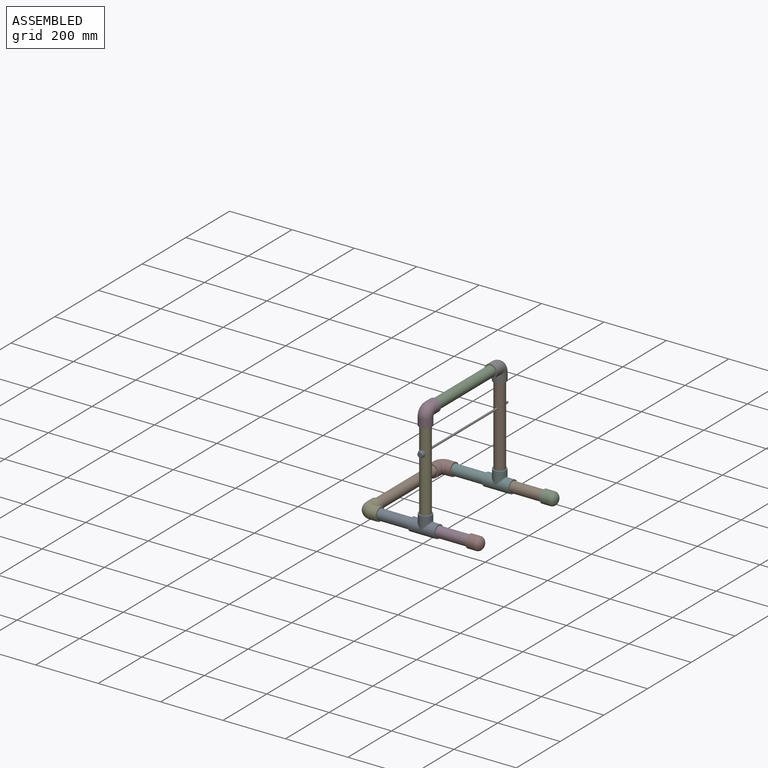
[diagram: assembled view]
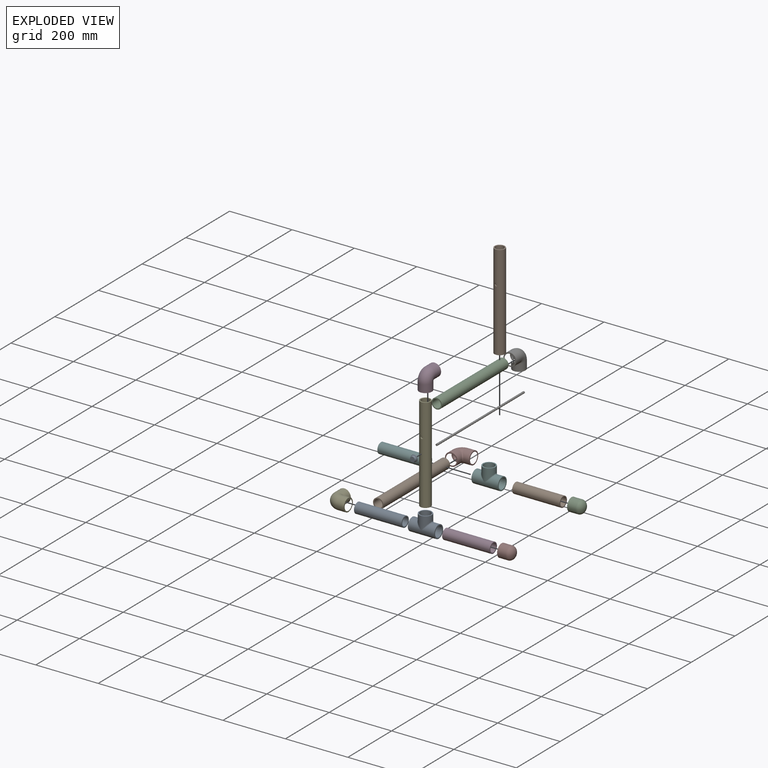
[diagram: exploded view]
GUIDED TOUR — MATED ASSEMBLY WITH SUBASSEMBLIES (Onshape document ecc70650d9e2fe0dbf41c61e, AutoMate assembly ecc70650d9e2fe0dbf41c61e_c4054f734761b2e7a3944f0c_7b533896100cbe7989020245_default)

This assembly has 19 component occurrences arranged in 18 top-level units: 17 individual components plus 1 subassembly (S0). The tour has two levels: first the top level, where each subassembly is treated as one rigid unit; then each subassembly is toured internally in its own section (nesting deeper than one subassembly level is flattened into its subassembly's section).

Components are labeled P0..P18 across the whole record; subassembly units are labeled S0..S0. A mate is a constraint between two units; its type names the relative motion it leaves free:
  FASTENED — locks the two components together rigidly (no relative motion),
  SLIDER — leaves translation along the listed axis free.
Axis/direction vectors are unit vectors and 'through' points are millimeter coordinates, both in the assembly's world frame.

TOP-LEVEL MATES (between units; each subassembly's internal mates are listed in its own section)
  1. FASTENED "Fastened 3": P17 <-> P0, direction (-1.000, 0.000, 0.000) through (169.86, -169.86, 0.00) mm
  2. FASTENED "Fastened 2": P4 <-> P17, direction (1.000, 0.000, 0.000) through (17.46, -169.86, 0.00) mm
  3. FASTENED "Fastened 1": P4 <-> P9, direction (0.000, 1.000, 0.000) through (0.00, -152.40, 0.00) mm
  4. FASTENED "Fastened 14": P18 <-> P13, direction (0.000, 0.000, -1.000) through (187.34, 169.86, 17.48) mm
  5. FASTENED "Fastened 9": P13 <-> P1, direction (1.000, 0.000, 0.000) through (204.81, 169.86, 0.00) mm
  6. FASTENED "Fastened 4": P3 <-> P0, direction (-1.000, 0.000, 0.000) through (204.81, -169.86, 0.00) mm
  7. FASTENED "Fastened 7": P15 <-> P5, direction (1.000, 0.000, 0.000) through (17.46, 169.86, 0.00) mm
  8. SLIDER "Slider 1": P6 <-> P12, axis (0.000, 1.000, 0.000) through (187.34, 5.86, 220.68) mm
  9. FASTENED "Fastened 6": P15 <-> P9, direction (0.000, -1.000, 0.000) through (0.00, 152.40, 0.00) mm
  10. FASTENED "Fastened 5": P3 <-> P7, direction (1.000, 0.000, 0.000) through (357.21, -169.86, 0.00) mm
  11. FASTENED "Fastened 16": P14 <-> P18, direction (0.000, 0.000, 1.000) through (187.34, 169.86, 322.28) mm
  12. FASTENED "Fastened 11": P12 <-> P0, direction (0.000, 0.000, 1.000) through (187.34, -169.86, 17.48) mm
  13. FASTENED "Fastened 15": P2 <-> P11, direction (0.000, 1.000, 0.000) through (187.34, -152.40, 339.74) mm
  14. FASTENED "Fastened 10": P1 <-> P10, direction (1.000, 0.000, 0.000) through (357.21, 169.86, 0.00) mm
  15. FASTENED "Fastened 17": S0 <-> P6, direction (0.000, 1.000, 0.000) through (187.34, -194.17, 220.68) mm
  16. FASTENED "Fastened 8": P13 <-> P5, direction (-1.000, 0.000, 0.000) through (169.86, 169.86, 0.00) mm
  17. FASTENED "Fastened 13": P14 <-> P2, direction (0.000, -1.000, 0.000) through (187.34, 152.40, 339.74) mm
  18. FASTENED "Fastened 12": P11 <-> P12, direction (0.000, 0.000, -1.000) through (187.34, -169.86, 322.28) mm

TOP-LEVEL ASSEMBLY ORDER
  1. P0 — the base component [order heuristic]
  2. P13 — core [order heuristic]
  3. P1 — core [order heuristic]
  4. P17 — core [order heuristic]
  5. P5 — core [order heuristic]
  6. P9 — core [order heuristic]
  7. P3 — core [order heuristic]
  8. P7 — core [order heuristic]
  9. P10 — core [order heuristic]
  10. P4 — core [order heuristic]
  11. P15 — core [order heuristic]
  12. P6 [order verified]
  13. S0 [order verified]
  14. P14 [order verified]
  15. P11 [order verified]
  16. P2 [order verified]
  17. P18 [order verified]
  18. P12 [order verified]
(S0 verified with a relaxed clearance tolerance: the source model stores slight part interference there.)
Order-tag legend:
  [order verified] — this step's position reverses a verified removal order: the component was checked to insert without passing through the ones already placed.
  [order heuristic] — the first 11 components form the assembly's core: parts whose collision-free extraction could not be verified, listed in mate-graph order.

Of the 19 component occurrences, 9 carry the full construction recipe — the FeatureScript program that regenerates the part's solid from scratch; the rest are supplied as boundary geometry only. Each toured unit is shown spotlighted twice — assembled, then exploded with a leader line back to its socket (green = recipe-attached component, orange = geometry-only, blue = subassembly unit; the rest desaturated gray).
NOTE — document 2 of 2 of this assembly tour. The two overview renders and the header above are repeated from document 1; the component sections below continue where the previous document stopped.
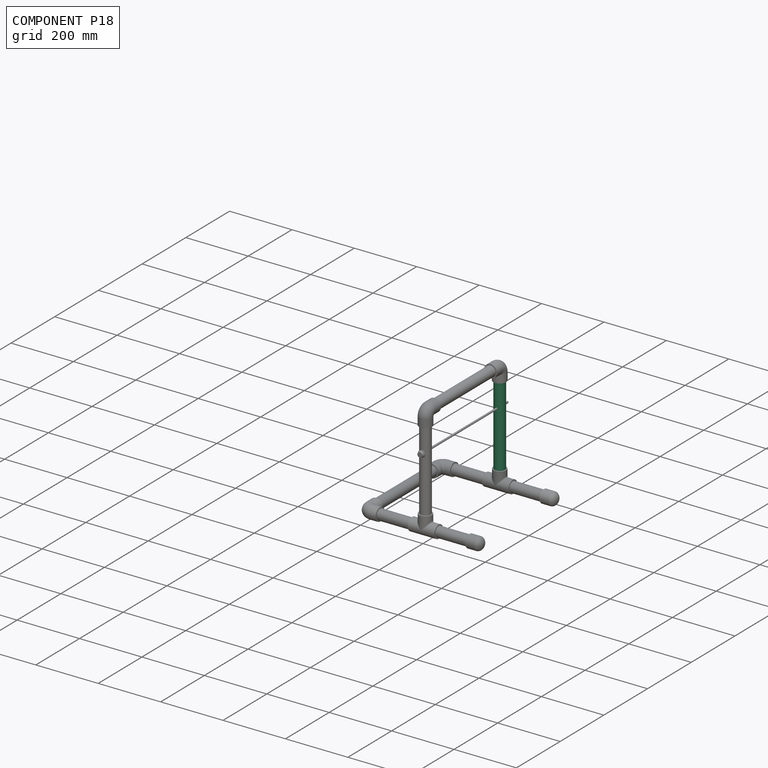
[diagram: component P18 — assembled]
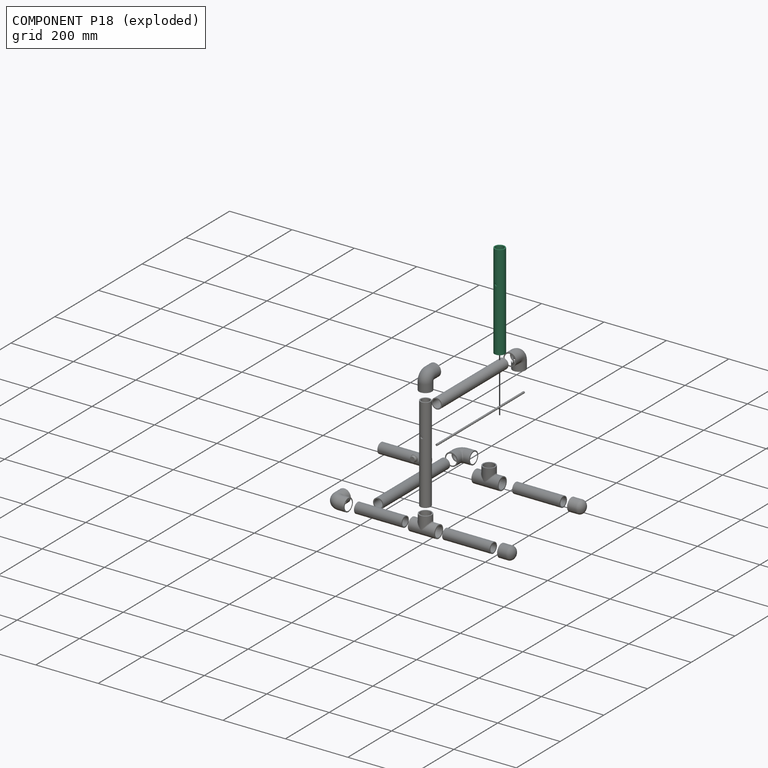
[diagram: component P18 — exploded]
COMPONENT P18 — same part as P12 (CADFS 00862327); its construction recipe is shown at P12.
Held by: FASTENED mate "Fastened 14" to P13; FASTENED mate "Fastened 16" to P14.
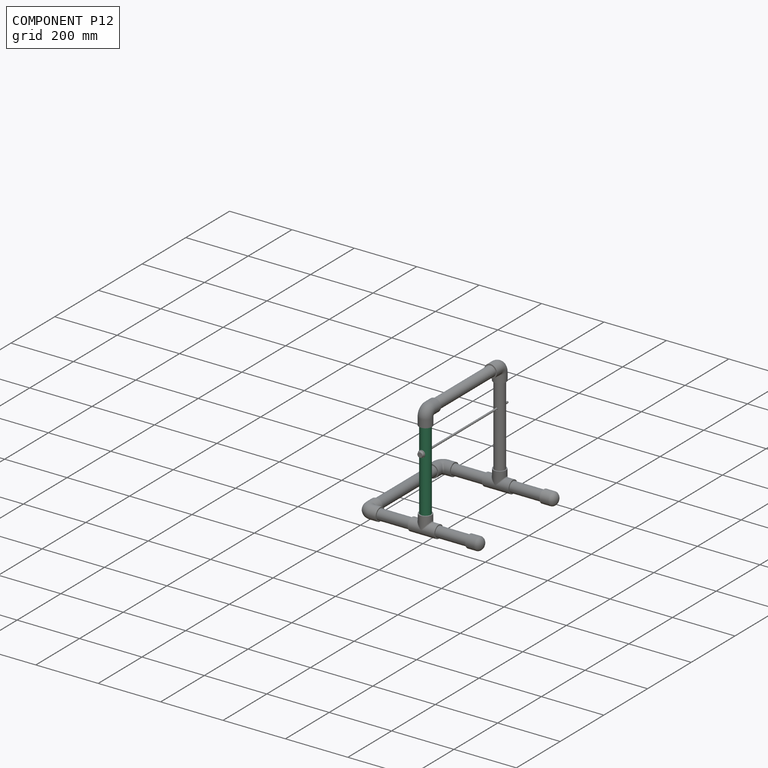
[diagram: component P12 — assembled]
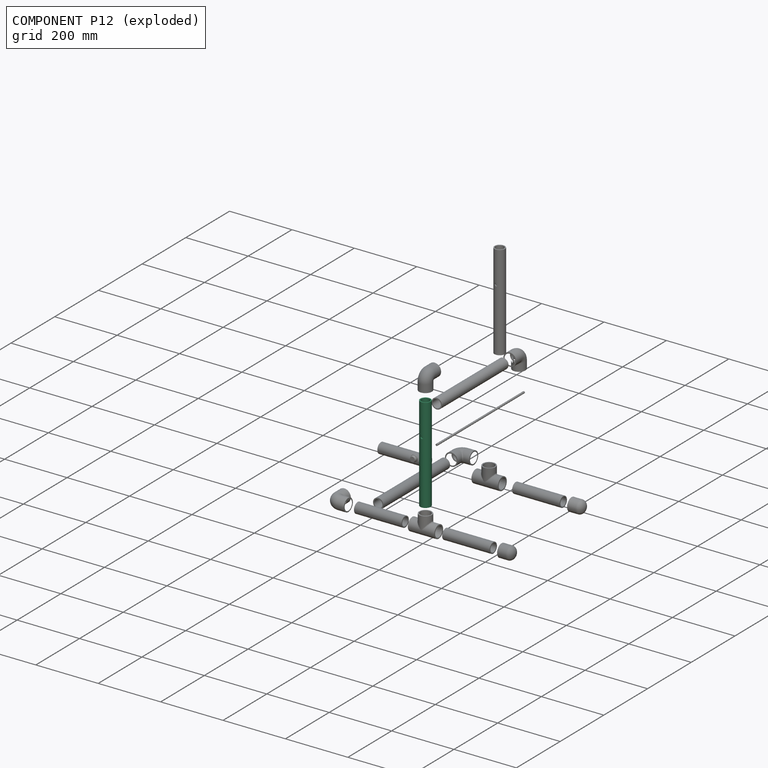
[diagram: component P12 — exploded]
COMPONENT P12 — recipe-attached (CADFS 00862327, mesh-verified: the recipe's output STEP matches this component's geometry to below the mesh-comparison resolution (tessellation chordal tolerance ~0.463 mm)).
Held by: SLIDER mate "Slider 1" to P6; FASTENED mate "Fastened 11" to P0; FASTENED mate "Fastened 12" to P11.
Construction recipe (FeatureScript — the CAD program that rebuilds this solid; sketch coordinates are in the units given by the * unit suffixes, e.g. mm):

FeatureScript 1511;
import(path : "onshape/std/geometry.fs", version : "1511.0");
import(path : "onshape/std/common.fs", version : "1511.0");
const mm = millimeter;
const VERTEX = EntityType.VERTEX;
const EDGE = EntityType.EDGE;
const FACE = EntityType.FACE;
const BODY = EntityType.BODY;
function v(x, y){return vector(x, y);}
function OD(order){return orderDisambiguation(order);}
function OSD(set){return originalSetDisambiguation(set);}
function TD(topology){return topologyDisambiguation(topology);}
function TDD(query){return trueDependencyDisambiguation(query);}
function sQuery(a, b, c) {return sketchEntityQuery(a, b, c);}

annotation { "Feature Type Name" : "Feature", "Feature Type Description" : "" }
export const myFeature = defineFeature(function(context is Context, id is Id, definition is map)
    precondition{}
    {
        {
            var Q0;
            Q0=qCreatedBy(makeId("Front.planeOp"),FACE);
            var sketch = newSketch(context, id + "F0", { "sketchPlane" : qUnion([Q0])});
            skCircle(sketch, "E0", {"center": v(0, 0) * mm, "radius": 16.7 * mm});
            skCircle(sketch, "E1", {"center": v(0, 0) * mm, "radius": 13.32 * mm});
            skSolve(sketch);
        }
        {
            var Q0;
            Q0=makeQuery(id+"F0.imprint","IMPRINT",FACE,{"disambiguationData":[TD([[makeQuery(id+"F0.imprint","IMPRINT",EDGE,{"derivedFrom":sQuery(id+"F0.wireOp",EDGE,"E0")}),1.0]])]});
            extrude(context, id + "F1", {"entities" : qUnion([Q0]), "endBound" : BoundingType.SYMMETRIC, "depth" : 304.8 * mm, "offsetDistance" : 25.4 * mm});
        }
        {
            var Q0;
            Q0=qCreatedBy(makeId("Right.planeOp"),FACE);
            var sketch = newSketch(context, id + "F2", { "sketchPlane" : qUnion([Q0])});
            skCircle(sketch, "E2", {"center": v(50.8, 0) * mm, "radius": 4.76 * mm});
            skSolve(sketch);
        }
        {
            var Q0;
            Q0=qSketchRegion(id+"F2",true);
            extrude(context, id + "F3", {"entities" : qUnion([Q0]), "operationType" : NewBodyOperationType.REMOVE, "endBound" : BoundingType.THROUGH_ALL, "oppositeDirection" : true, "depth" : 25.4 * mm, "offsetDistance" : 25.4 * mm, "hasSecondDirection" : true, "secondDirectionBound" : SecondDirectionBoundingType.THROUGH_ALL, "secondDirectionOppositeDirection" : false, "secondDirectionDepth" : 25.4 * mm});
        }
    });
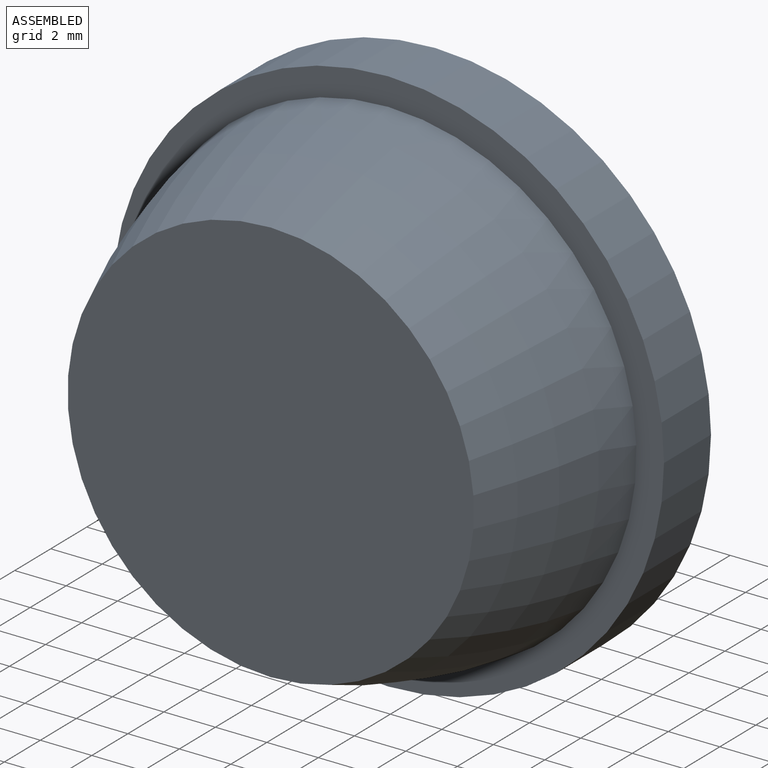
[diagram: subassembly S0 — assembled view]
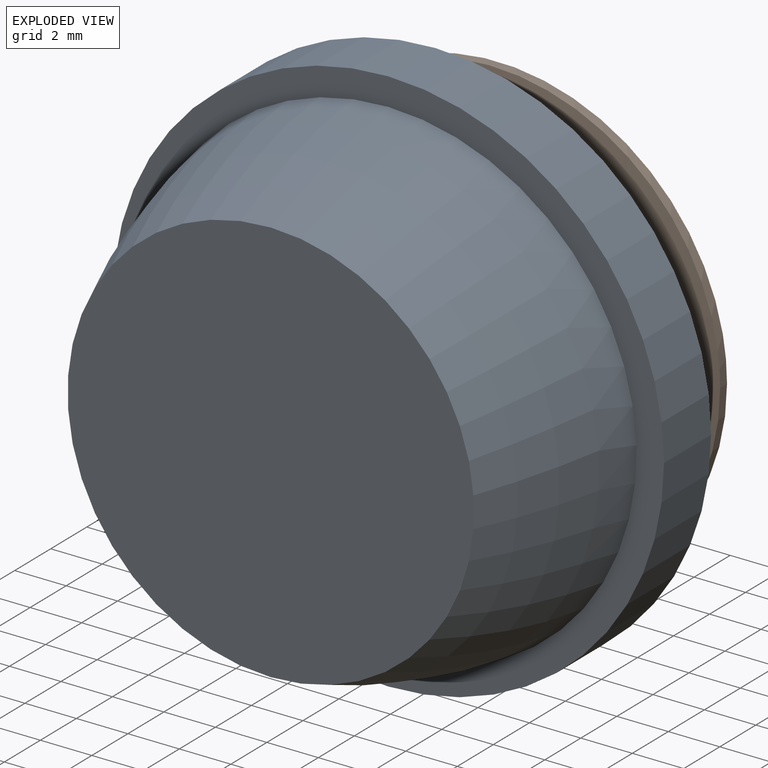
[diagram: subassembly S0 — exploded view]
SUBASSEMBLY S0 TOUR — 2 components, shown here in isolation at its own camera.

INTERNAL MATES
  1. FASTENED "Fastened 2": P16 <-> P8, direction (0.000, 1.000, 0.000) through (187.34, -188.09, 220.68) mm
  2. FASTENED "Fastened 2": P16 <-> P8, direction (0.000, 1.000, 0.000) through (187.34, -188.09, 220.68) mm

ASSEMBLY ORDER (within the subassembly)
  1. P8 — the base component [order heuristic]
  2. P16 [order heuristic]
Order-tag legend:
  [order heuristic] — this assembly is geometrically interlocked (no collision-free removal order exists), so components are listed in mate-graph order; insertion feasibility is not verified.
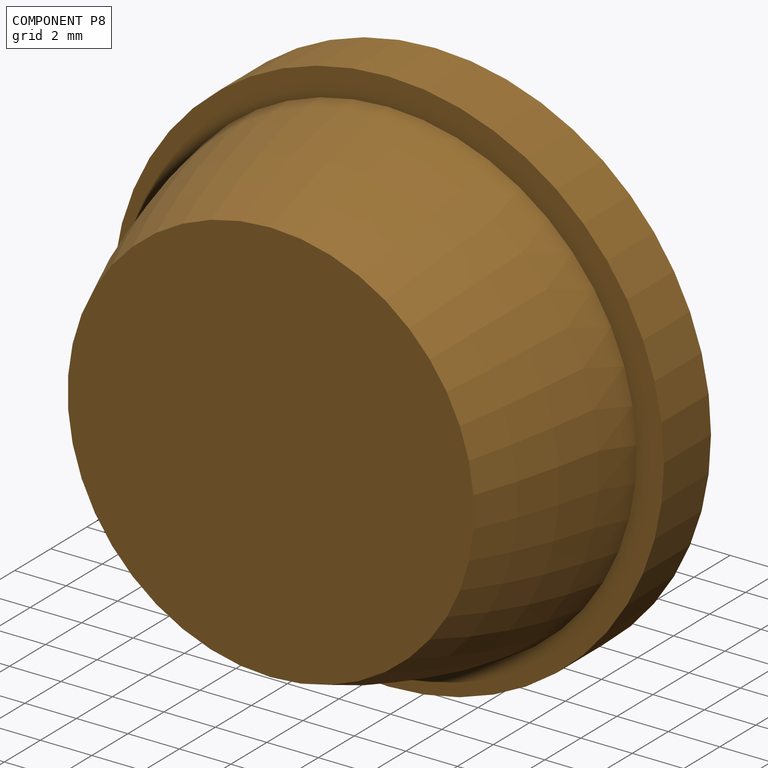
[diagram: component P8 — assembled]
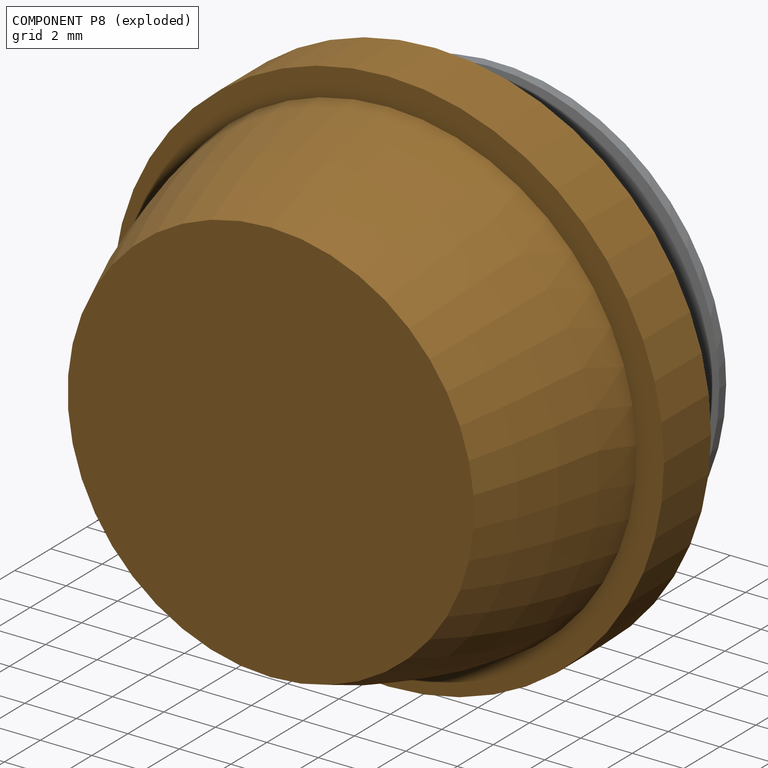
[diagram: component P8 — exploded]
COMPONENT P8 — geometry summary (no construction recipe available for this part):
  bounding box: 21.4 x 21.4 x 9.1 mm
  B-rep topology: 1 solid, 11 faces, 30 edges
  volume: 1231 mm^3 (29% of its bounding box)
  symmetry: revolution-symmetric about the y axis through its bounding-box center; mirror-symmetric across its x mid-plane, z mid-plane
Held by: FASTENED mate "Fastened 2" to P16; FASTENED mate "Fastened 2" to P16.
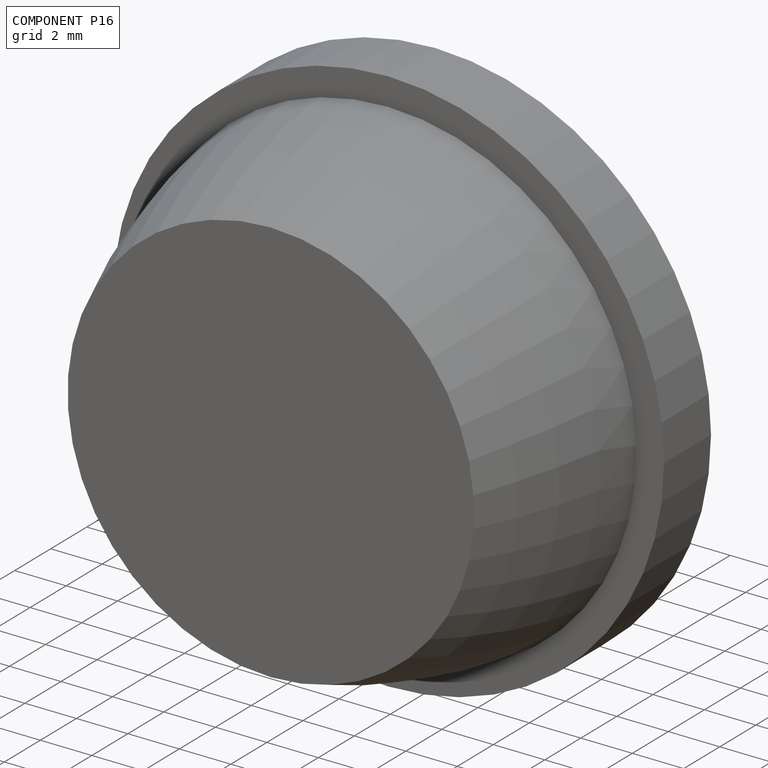
[diagram: component P16 — assembled]
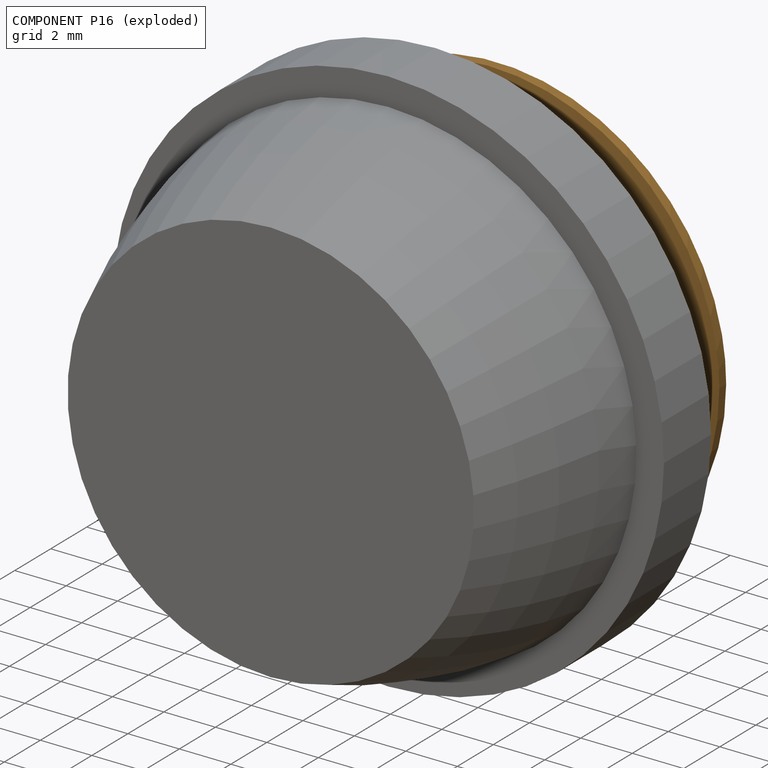
[diagram: component P16 — exploded]
COMPONENT P16 — geometry summary (no construction recipe available for this part):
  bounding box: 17.9 x 17.9 x 2.1 mm
  B-rep topology: 1 solid, 39 faces, 236 edges
  volume: 83 mm^3 (13% of its bounding box)
  symmetry: 6-fold rotationally symmetric about the y axis; mirror-symmetric across its x mid-plane, z mid-plane
Held by: FASTENED mate "Fastened 2" to P8; FASTENED mate "Fastened 2" to P8.
PROVENANCE & LICENSES
Assembly (occurrences, transforms, mates, per-part STEP geometry): AutoMate dataset, Zenodo record 7776208, CC0.
Construction recipes: CADFS (HuggingFace VladPyatov/CADFS, CC-BY-4.0, layered over the ABC dataset), FeatureScript reconstruction programs keyed by ABC model id.
Join: ABC meta listings map ABC model id -> Onshape documentId; within a shared document, parts are matched by geometric signature (bounding-box dims + volume at 0.1% relative tolerance, exact B-rep face/solid counts).
Verification: 9 of this assembly's 19 components carry a recipe attachment, and every attachment is mesh-verified: the CADFS STEP and the AutoMate member STEP were compared as meshes in their shared local frame (symmetric sampled-point-to-mesh distance); worst across the 9 attachments: below the mesh-comparison resolution (tessellation chordal tolerance ~0.6 mm) on a 400 mm part.
Renders: orthographic iso camera (az 35 / el 25); the floor grid conveys scale (grid pitch printed in each image; no ruler). In the exploded view each component is displaced by its stored offset vector: the offsets alone carry the explosion direction (mate normal/axis signs are not orientation cues and do not encode it), and separation distances are assigned per mate-chain, not proportionally to assembly-order depth.
